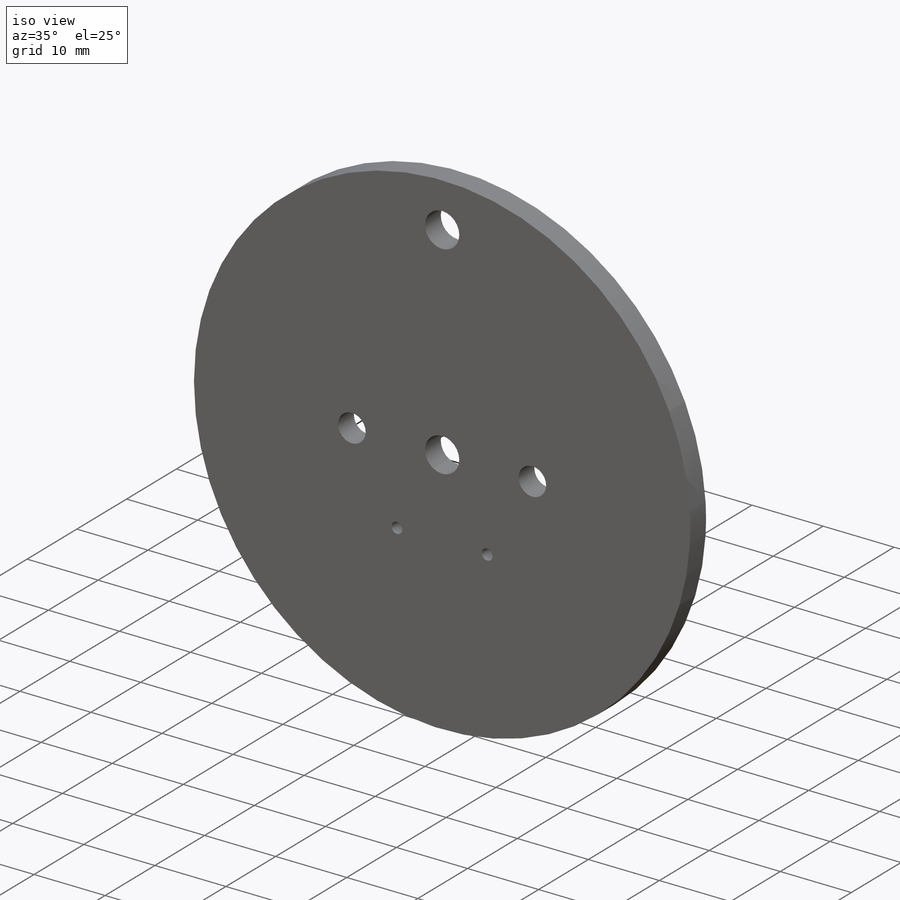
[diagram: iso view]
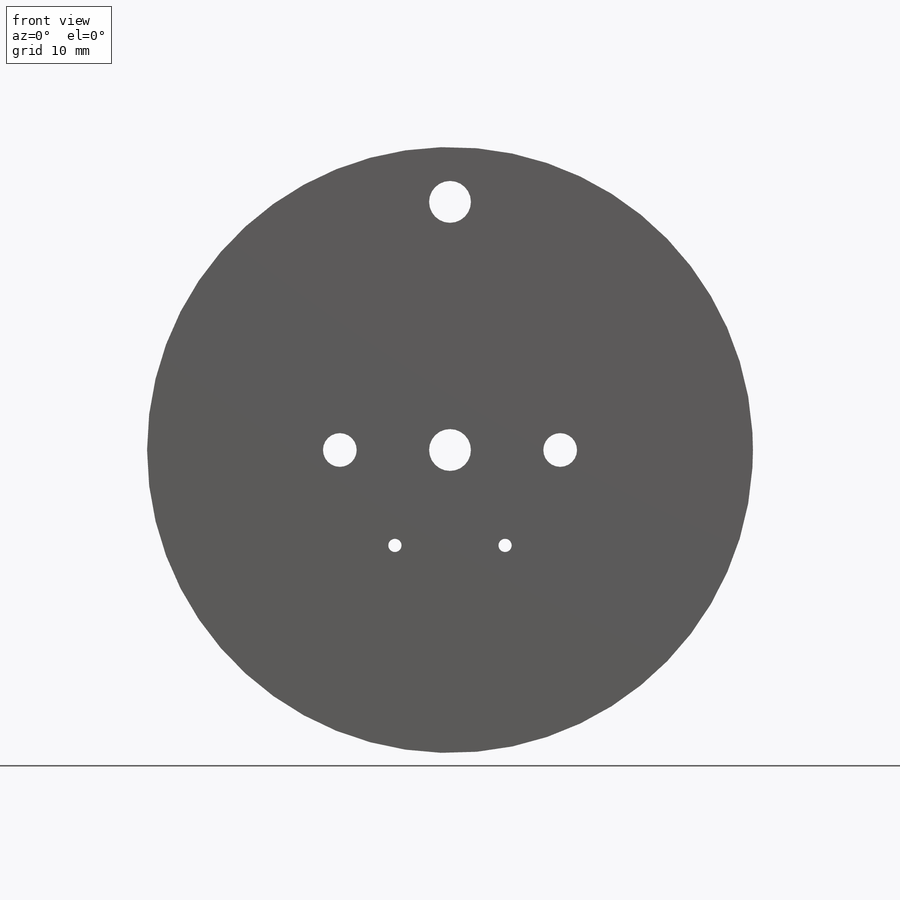
[diagram: front view]
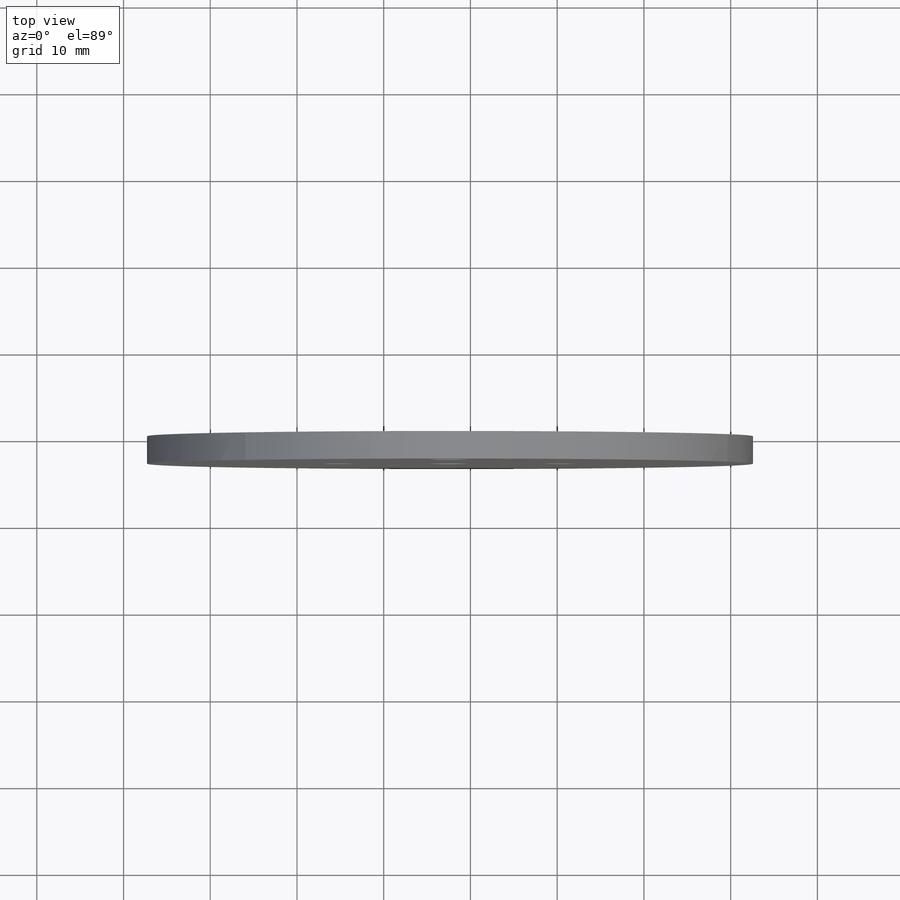
[diagram: top view]
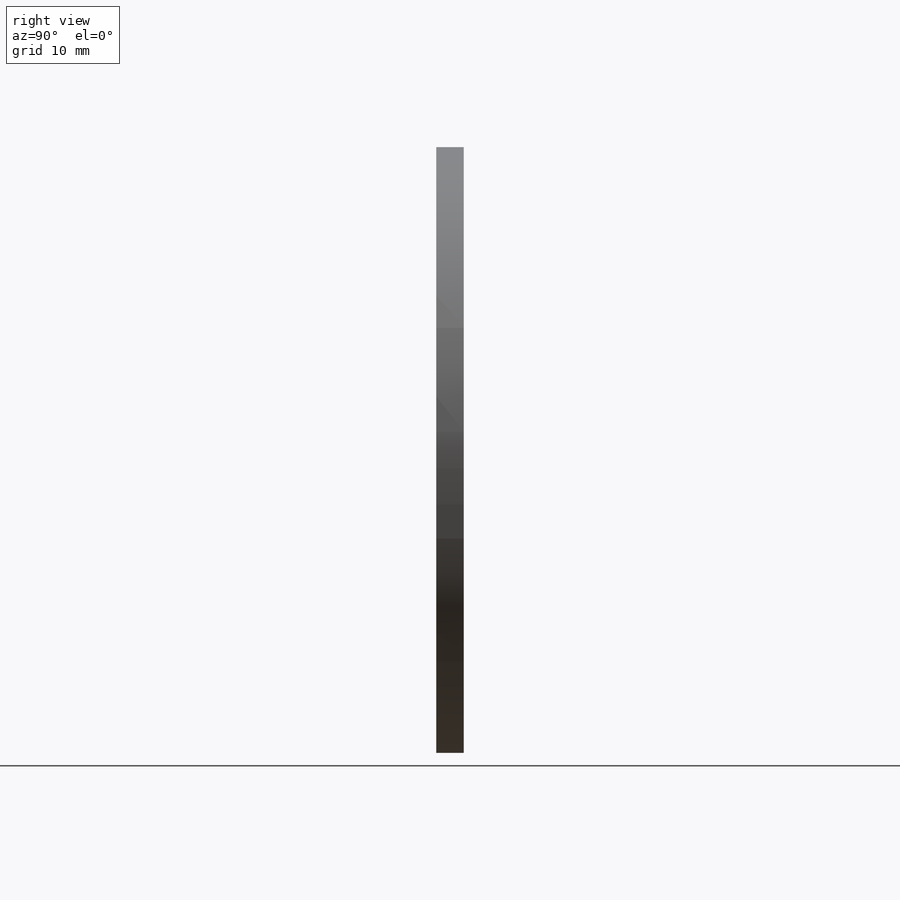
[diagram: right view]
SOLIDWORKS PART (.sldprt)
format: sldprt  version: not decoded by parser v0  size: 175,104 bytes
history: native  units: mm
features: sketch x3, cut_extrude x2, material x1, extrude x1, plane x1, pattern_circular x1 (+12 scaffold rows collapsed)
feature tree (21):
  scaffold x12  (default folders/planes/origin — collapsed)
  material  "Acrylic (Medium-high impact)"
  sketch  "Sketch1"  dims[c1.D1=~135.276336mm c1.D3=6.35mm c1.D4=69.85mm c1.D2=~28.374805mm c2.D2=45.0deg c3.D2=0.0mm]
  extrude  "Boss-Extrude1"  Depth=3.175mm
  sketch  "Sketch2"  dims[D1=6.35mm D2=4.826mm D3=4.826mm D4=~26.251183mm]
  cut_extrude  "Cut-Extrude1"  [1 undecoded]
  plane  "Plane1"
  sketch  "Sketch4"  dims[c1.D1=3.8862mm c1.D2=3.175mm c1.D3=1.524mm c1.D4=25.4mm c1.D5=1.524mm c2.D2=12.7mm c2.D5=~9.830913mm c3.D5=60.0deg]
  cut_extrude  "Cut-Extrude2"  [1 undecoded]
  pattern_circular  "CirPattern1"  Count=3 Angle=120deg
decode coverage: 5 of 7 modeling features carry decoded parameters
note: ~ marks probable driven/reference dimensions
note: 2 parameter values undecoded
note: suppression state not decoded; provenance and decode notes live in map.json
